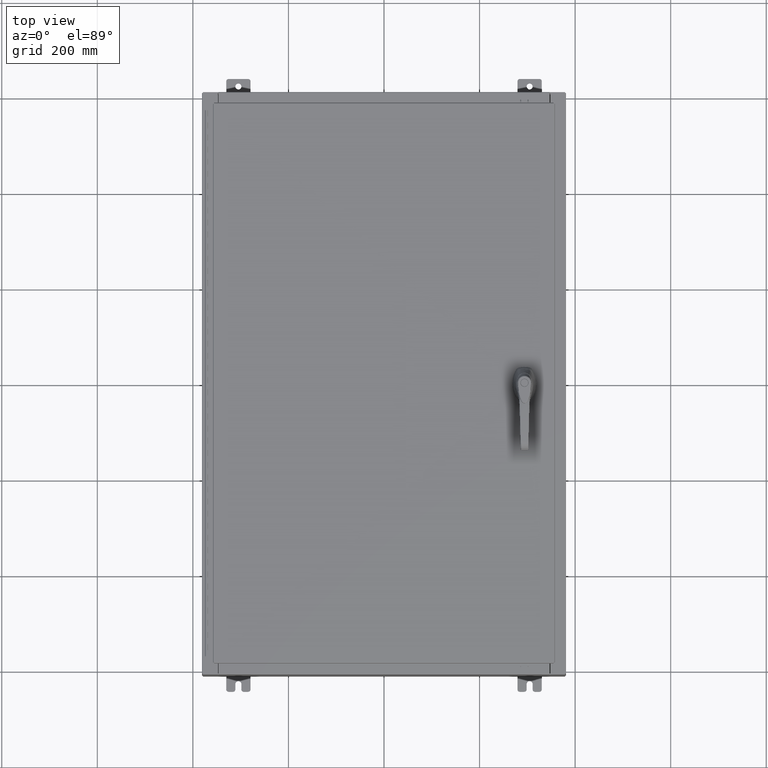
[diagram: clean part render]
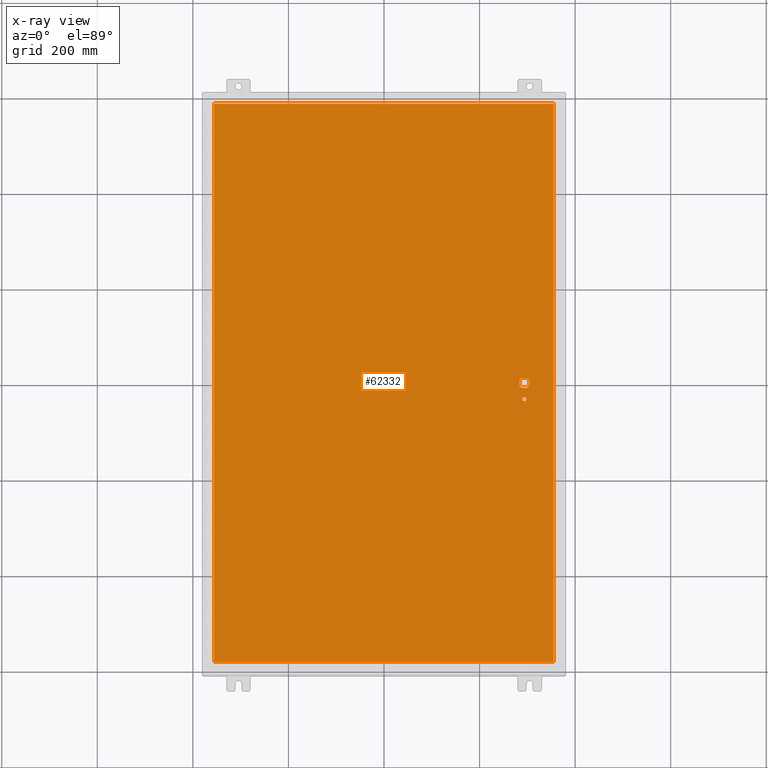
[diagram: x-ray — body ghosted, one internal face saturated and labeled with its STEP entity id]
A machine part, top view, then the same camera in x-ray: the body is ghosted and one INTERNAL B-rep face — a face not visible from any outside direction — is saturated and labeled: STEP entity #62332.
In plain terms, the highlighted planar face has unit normal (0, 0, -1).
Its self-contained STEP definition (entity closure, byte-faithful):
#1796 = VECTOR ( 'NONE', #20524, 39.37007874015748100 ) ;
#2496 = DIRECTION ( 'NONE',  ( -0.0000000000000000000, -0.0000000000000000000, 1.000000000000000000 ) ) ;
#3026 = CIRCLE ( 'NONE', #120341, 0.1715000000000011500 ) ;
#4163 = CARTESIAN_POINT ( 'NONE',  ( -13.99029999999999800, -23.00630000000000300, -0.07469999999999804600 ) ) ;
#5194 = VERTEX_POINT ( 'NONE', #55848 ) ;
#5796 = VERTEX_POINT ( 'NONE', #27371 ) ;
#6211 = VERTEX_POINT ( 'NONE', #54954 ) ;
#6794 = CARTESIAN_POINT ( 'NONE',  ( 13.99029999999999800, -23.00630000000000300, -0.07470000000000019700 ) ) ;
#7139 = VERTEX_POINT ( 'NONE', #110035 ) ;
#7751 = ORIENTED_EDGE ( 'NONE', *, *, #125409, .T. ) ;
#9139 = CARTESIAN_POINT ( 'NONE',  ( 11.98099999999992500, 0.2002273707563075900, -0.07470000000000003000 ) ) ;
#9328 = VECTOR ( 'NONE', #99113, 39.37007874015748100 ) ;
#9618 = EDGE_LOOP ( 'NONE', ( #102860, #59977, #97626, #122781, #121962, #7751, #31356, #47935 ) ) ;
#11039 = DIRECTION ( 'NONE',  ( -1.000000000000000000, 0.0000000000000000000, 0.0000000000000000000 ) ) ;
#11757 = CARTESIAN_POINT ( 'NONE',  ( 11.57799999999999800, -1.338000000000000100, -0.07470000000000003000 ) ) ;
#14419 = VERTEX_POINT ( 'NONE', #104551 ) ;
#14867 = ORIENTED_EDGE ( 'NONE', *, *, #24217, .F. ) ;
#15138 = EDGE_CURVE ( 'NONE', #6211, #14419, #36021, .T. ) ;
#16153 = AXIS2_PLACEMENT_3D ( 'NONE', #54986, #126996, #65389 ) ;
#16430 = VERTEX_POINT ( 'NONE', #9139 ) ;
#17973 = DIRECTION ( 'NONE',  ( -1.000000000000000000, -0.0000000000000000000, -0.0000000000000000000 ) ) ;
#19932 = FACE_BOUND ( 'NONE', #9618, .T. ) ;
#20524 = DIRECTION ( 'NONE',  ( 0.0000000000000000000, -1.000000000000000000, 0.0000000000000000000 ) ) ;
#22086 = DIRECTION ( 'NONE',  ( -1.000000000000000000, 0.0000000000000000000, 0.0000000000000000000 ) ) ;
#22745 = VERTEX_POINT ( 'NONE', #25746 ) ;
#23713 = PLANE ( 'NONE',  #104986 ) ;
#24217 = EDGE_CURVE ( 'NONE', #50769, #113865, #125077, .T. ) ;
#25746 = CARTESIAN_POINT ( 'NONE',  ( 11.37777262924368800, -0.4029999999999250300, -0.07470000000000003000 ) ) ;
#26916 = VERTEX_POINT ( 'NONE', #41141 ) ;
#27371 = CARTESIAN_POINT ( 'NONE',  ( 13.99029999999999800, 23.00630000000000300, -0.07470000000000000300 ) ) ;
#28636 = VECTOR ( 'NONE', #58019, 39.37007874015748100 ) ;
#29290 = EDGE_CURVE ( 'NONE', #14419, #43000, #31120, .T. ) ;
#29552 = VECTOR ( 'NONE', #11039, 39.37007874015748100 ) ;
#31120 = CIRCLE ( 'NONE', #45941, 0.4499999999999168000 ) ;
#31356 = ORIENTED_EDGE ( 'NONE', *, *, #130155, .T. ) ;
#34052 = DIRECTION ( 'NONE',  ( -1.000000000000000000, 0.0000000000000000000, -0.0000000000000000000 ) ) ;
#34260 = CARTESIAN_POINT ( 'NONE',  ( 13.99029999999999800, -23.00630000000000000, -0.07470000000000000300 ) ) ;
#36021 = LINE ( 'NONE', #114078, #29552 ) ;
#37314 = AXIS2_PLACEMENT_3D ( 'NONE', #120137, #58504, #130415 ) ;
#37431 = CARTESIAN_POINT ( 'NONE',  ( 0.0000000000000000000, -0.4029999999999252000, -0.07470000000000003000 ) ) ;
#38754 = VERTEX_POINT ( 'NONE', #104803 ) ;
#38805 = AXIS2_PLACEMENT_3D ( 'NONE', #43636, #115708, #54005 ) ;
#39588 = EDGE_CURVE ( 'NONE', #22745, #5194, #39848, .T. ) ;
#39848 = LINE ( 'NONE', #37431, #9328 ) ;
#41141 = CARTESIAN_POINT ( 'NONE',  ( 11.74949999999999900, -1.338000000000000100, -0.07470000000000003000 ) ) ;
#42412 = AXIS2_PLACEMENT_3D ( 'NONE', #64077, #2496, #74487 ) ;
#42512 = CARTESIAN_POINT ( 'NONE',  ( 11.17500000000007000, 0.0000000000000000000, -0.07470000000000003000 ) ) ;
#43000 = VERTEX_POINT ( 'NONE', #112464 ) ;
#43636 = CARTESIAN_POINT ( 'NONE',  ( 11.57799999999999800, 0.0000000000000000000, -0.07470000000000003000 ) ) ;
#44017 = ORIENTED_EDGE ( 'NONE', *, *, #89975, .F. ) ;
#44551 = DIRECTION ( 'NONE',  ( 5.457491617345625000E-015, -1.000000000000000000, 0.0000000000000000000 ) ) ;
#44717 = VERTEX_POINT ( 'NONE', #99765 ) ;
#45941 = AXIS2_PLACEMENT_3D ( 'NONE', #53189, #125187, #63574 ) ;
#47935 = ORIENTED_EDGE ( 'NONE', *, *, #39588, .T. ) ;
#50769 = VERTEX_POINT ( 'NONE', #72065 ) ;
#53189 = CARTESIAN_POINT ( 'NONE',  ( 11.57799999999999800, 0.0000000000000000000, -0.07470000000000003000 ) ) ;
#53267 = LINE ( 'NONE', #94417, #108117 ) ;
#54005 = DIRECTION ( 'NONE',  ( -1.000000000000000000, -1.776356839400246700E-015, 0.0000000000000000000 ) ) ;
#54954 = CARTESIAN_POINT ( 'NONE',  ( 11.77822737075630700, 0.4029999999999250300, -0.07470000000000003000 ) ) ;
#54986 = CARTESIAN_POINT ( 'NONE',  ( 11.57799999999999800, 0.0000000000000000000, -0.07470000000000003000 ) ) ;
#55236 = CIRCLE ( 'NONE', #16153, 0.4499999999999168000 ) ;
#55848 = CARTESIAN_POINT ( 'NONE',  ( 11.77822737075630700, -0.4029999999999252000, -0.07470000000000003000 ) ) ;
#56549 = EDGE_LOOP ( 'NONE', ( #119471, #14867, #59140, #44017 ) ) ;
#56590 = EDGE_CURVE ( 'NONE', #5194, #44717, #106257, .T. ) ;
#58019 = DIRECTION ( 'NONE',  ( 0.0000000000000000000, 1.000000000000000000, 0.0000000000000000000 ) ) ;
#58336 = LINE ( 'NONE', #113794, #106686 ) ;
#58504 = DIRECTION ( 'NONE',  ( -0.0000000000000000000, -0.0000000000000000000, 1.000000000000000000 ) ) ;
#59140 = ORIENTED_EDGE ( 'NONE', *, *, #88872, .F. ) ;
#59977 = ORIENTED_EDGE ( 'NONE', *, *, #128532, .F. ) ;
#62332 = ADVANCED_FACE ( 'NONE', ( #129385, #98855, #19932 ), #23713, .T. ) ;
#63574 = DIRECTION ( 'NONE',  ( -1.000000000000000000, -5.329070518200740300E-015, 0.0000000000000000000 ) ) ;
#64077 = CARTESIAN_POINT ( 'NONE',  ( 11.57799999999999800, -1.338000000000000100, -0.07470000000000003000 ) ) ;
#65389 = DIRECTION ( 'NONE',  ( -1.000000000000000000, -5.329070518200740300E-015, 0.0000000000000000000 ) ) ;
#65780 = DIRECTION ( 'NONE',  ( 1.000000000000000000, -0.0000000000000000000, -0.0000000000000000000 ) ) ;
#66038 = CARTESIAN_POINT ( 'NONE',  ( -13.99029999999999800, 23.00630000000000300, -0.07470000000000000300 ) ) ;
#66136 = LINE ( 'NONE', #42512, #1796 ) ;
#70220 = CIRCLE ( 'NONE', #38805, 0.4499999999999168000 ) ;
#72065 = CARTESIAN_POINT ( 'NONE',  ( -13.99029999999999800, -23.00630000000000000, -0.07470000000000000300 ) ) ;
#73726 = VECTOR ( 'NONE', #44551, 39.37007874015748100 ) ;
#74487 = DIRECTION ( 'NONE',  ( -1.000000000000000000, 0.0000000000000000000, 0.0000000000000000000 ) ) ;
#76191 = ORIENTED_EDGE ( 'NONE', *, *, #102643, .T. ) ;
#78607 = ORIENTED_EDGE ( 'NONE', *, *, #92755, .T. ) ;
#81669 = CIRCLE ( 'NONE', #42412, 0.1715000000000011500 ) ;
#83463 = LINE ( 'NONE', #6794, #28636 ) ;
#83812 = DIRECTION ( 'NONE',  ( -0.0000000000000000000, -0.0000000000000000000, 1.000000000000000000 ) ) ;
#88872 = EDGE_CURVE ( 'NONE', #131822, #50769, #58336, .T. ) ;
#89975 = EDGE_CURVE ( 'NONE', #5796, #131822, #53267, .T. ) ;
#92755 = EDGE_CURVE ( 'NONE', #26916, #38754, #3026, .T. ) ;
#94417 = CARTESIAN_POINT ( 'NONE',  ( 13.99029999999999800, 23.00630000000001000, -0.07469999999999804600 ) ) ;
#95728 = DIRECTION ( 'NONE',  ( 0.0000000000000000000, 0.0000000000000000000, -1.000000000000000000 ) ) ;
#97626 = ORIENTED_EDGE ( 'NONE', *, *, #113030, .T. ) ;
#98855 = FACE_OUTER_BOUND ( 'NONE', #56549, .T. ) ;
#99113 = DIRECTION ( 'NONE',  ( 1.000000000000000000, 0.0000000000000000000, 0.0000000000000000000 ) ) ;
#99765 = CARTESIAN_POINT ( 'NONE',  ( 11.98099999999992500, -0.2002273707563067300, -0.07470000000000003000 ) ) ;
#101507 = EDGE_CURVE ( 'NONE', #113865, #5796, #83463, .T. ) ;
#102424 = EDGE_LOOP ( 'NONE', ( #78607, #76191 ) ) ;
#102643 = EDGE_CURVE ( 'NONE', #38754, #26916, #81669, .T. ) ;
#102860 = ORIENTED_EDGE ( 'NONE', *, *, #56590, .T. ) ;
#104551 = CARTESIAN_POINT ( 'NONE',  ( 11.37777262924368800, 0.4029999999999252000, -0.07470000000000003000 ) ) ;
#104803 = CARTESIAN_POINT ( 'NONE',  ( 11.40649999999999600, -1.338000000000000100, -0.07470000000000003000 ) ) ;
#104986 = AXIS2_PLACEMENT_3D ( 'NONE', #126270, #95728, #34052 ) ;
#106257 = CIRCLE ( 'NONE', #37314, 0.4499999999999168000 ) ;
#106686 = VECTOR ( 'NONE', #124066, 39.37007874015748100 ) ;
#108117 = VECTOR ( 'NONE', #17973, 39.37007874015748100 ) ;
#110035 = CARTESIAN_POINT ( 'NONE',  ( 11.17500000000007000, -0.2002273707563079800, -0.07470000000000003000 ) ) ;
#112464 = CARTESIAN_POINT ( 'NONE',  ( 11.17500000000007000, 0.2002273707563075900, -0.07470000000000003000 ) ) ;
#113030 = EDGE_CURVE ( 'NONE', #16430, #6211, #55236, .T. ) ;
#113794 = CARTESIAN_POINT ( 'NONE',  ( -13.99029999999999800, 23.00630000000000300, -0.07470000000000019700 ) ) ;
#113865 = VERTEX_POINT ( 'NONE', #34260 ) ;
#114078 = CARTESIAN_POINT ( 'NONE',  ( 0.0000000000000000000, 0.4029999999999252000, -0.07470000000000003000 ) ) ;
#115708 = DIRECTION ( 'NONE',  ( -0.0000000000000000000, -0.0000000000000000000, 1.000000000000000000 ) ) ;
#116612 = CARTESIAN_POINT ( 'NONE',  ( 11.98099999999992500, 6.538620706741752400E-014, -0.07470000000000003000 ) ) ;
#118665 = VECTOR ( 'NONE', #65780, 39.37007874015748100 ) ;
#119471 = ORIENTED_EDGE ( 'NONE', *, *, #101507, .F. ) ;
#120137 = CARTESIAN_POINT ( 'NONE',  ( 11.57799999999999800, 0.0000000000000000000, -0.07470000000000003000 ) ) ;
#120341 = AXIS2_PLACEMENT_3D ( 'NONE', #11757, #83812, #22086 ) ;
#121962 = ORIENTED_EDGE ( 'NONE', *, *, #29290, .T. ) ;
#122781 = ORIENTED_EDGE ( 'NONE', *, *, #15138, .T. ) ;
#124066 = DIRECTION ( 'NONE',  ( 0.0000000000000000000, -1.000000000000000000, 0.0000000000000000000 ) ) ;
#125077 = LINE ( 'NONE', #4163, #118665 ) ;
#125187 = DIRECTION ( 'NONE',  ( -0.0000000000000000000, -0.0000000000000000000, 1.000000000000000000 ) ) ;
#125409 = EDGE_CURVE ( 'NONE', #43000, #7139, #66136, .T. ) ;
#126270 = CARTESIAN_POINT ( 'NONE',  ( 0.0000000000000000000, 0.0000000000000000000, -0.07470000000000000300 ) ) ;
#126996 = DIRECTION ( 'NONE',  ( -0.0000000000000000000, -0.0000000000000000000, 1.000000000000000000 ) ) ;
#128359 = LINE ( 'NONE', #116612, #73726 ) ;
#128532 = EDGE_CURVE ( 'NONE', #16430, #44717, #128359, .T. ) ;
#129385 = FACE_BOUND ( 'NONE', #102424, .T. ) ;
#130155 = EDGE_CURVE ( 'NONE', #7139, #22745, #70220, .T. ) ;
#130415 = DIRECTION ( 'NONE',  ( -1.000000000000000000, -1.776356839400246700E-015, 0.0000000000000000000 ) ) ;
#131822 = VERTEX_POINT ( 'NONE', #66038 ) ;